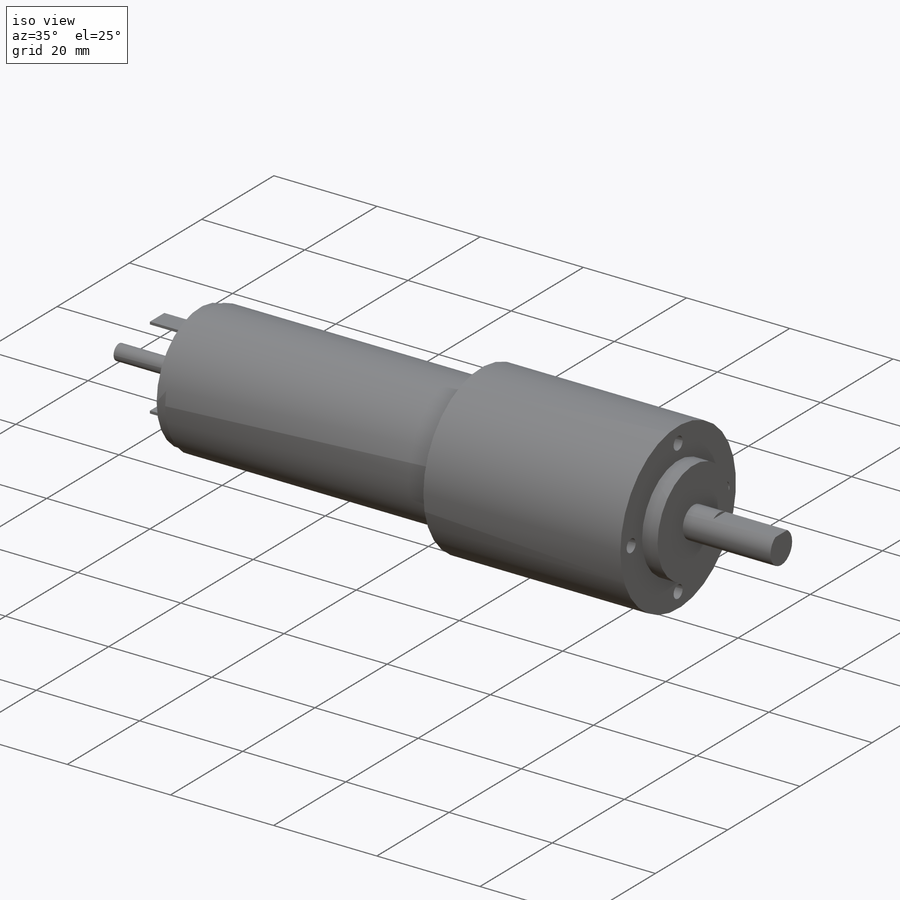
[diagram: iso view]
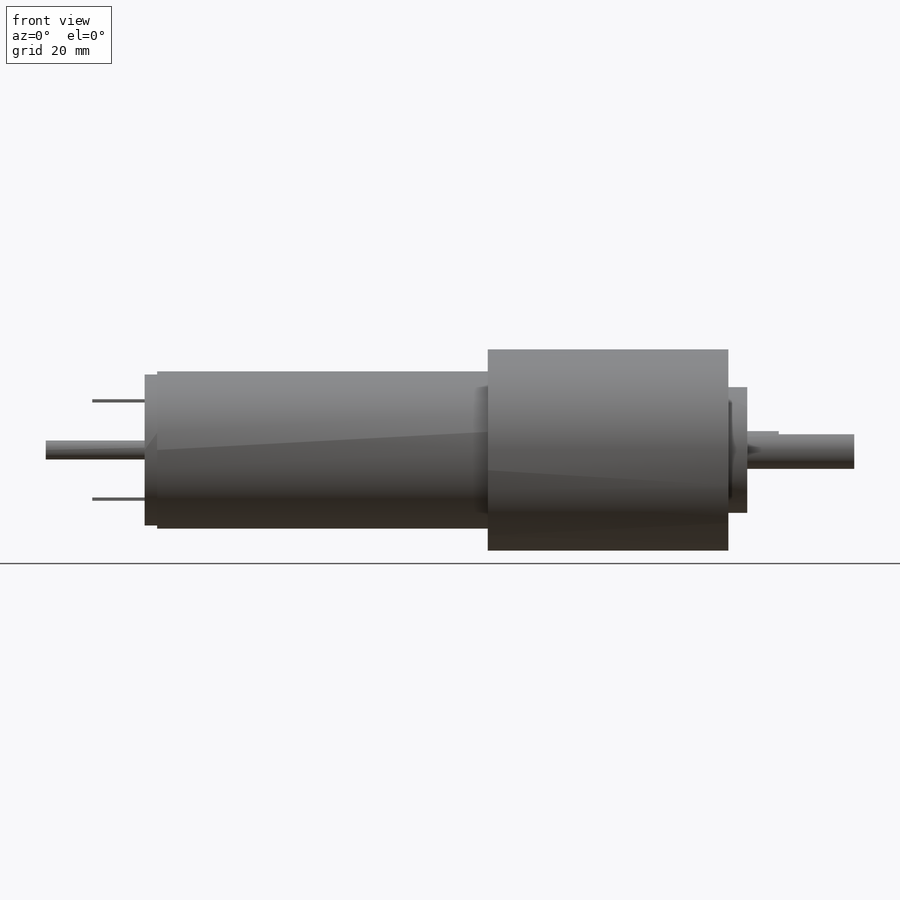
[diagram: front view]
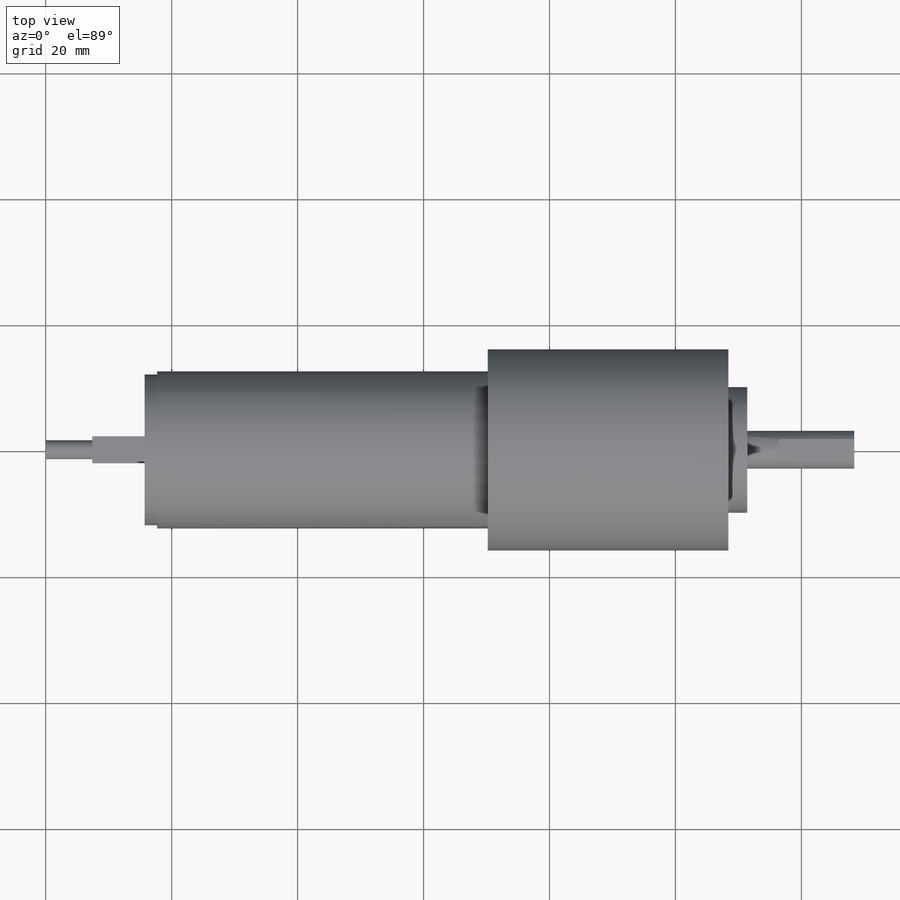
[diagram: top view]
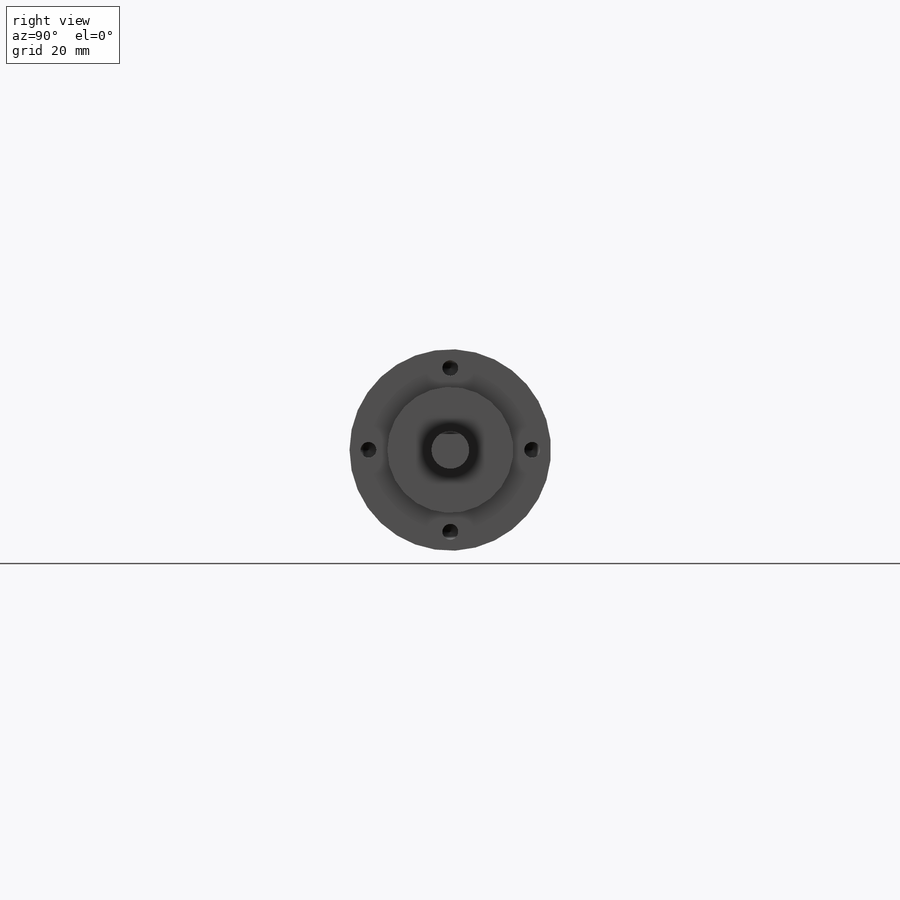
[diagram: right view]
SOLIDWORKS PART (.sldprt)
format: sldprt  version: not decoded by parser v0  size: 575,488 bytes
history: native  units: mm
features: sketch x6, plane x3, pattern_circular x2, material x1, revolve x1, extrude x1, cut_extrude x1, hole x1, thread x1 (+12 scaffold rows collapsed)
feature tree (29):
  scaffold x12  (default folders/planes/origin — collapsed)
  material  "Matériau <non spécifié>"
  plane  "Plan de face"
  plane  "Plan de dessus"
  plane  "Plan de droite"
  sketch  "Esquisse1"  dims[D1=1.5mm D2=12.0mm D3=12.5mm D4=3.0mm D5=10.0mm D6=16.0mm D7=54.5mm D8=15.7mm D9=2.0mm D10=38.2mm D11=20.0mm D12=3.0mm]
  revolve  "Révolution1"  Angle=360deg
  sketch  "Esquisse2"  dims[c1.D1=0.5mm c1.D2=4.0mm c1.D3=9.0mm c1.D4=2.0mm c2.D1=4.0mm c2.D2=0.5mm c2.D3=7.55mm c2.D4=2.0mm c3.D1=9.0mm]
  extrude  "Extrusion1"  Depth=8.3mm
  pattern_circular  "Répétition circulaire1"  Count=2 Angle=180deg
  sketch  "Esquisse3"  dims[D1=0.5mm D2=12.0mm]
  cut_extrude  "Enlèv. mat.-Extru.1"  [1 undecoded]
  sketch  "Esquisse4"  dims[D1=26.0mm]
  hole  "Trou taraudé M3x0.51"  Diameter=2.5mm Depth=6.5mm
  sketch  "Esquisse3D1"
  sketch  "Esquisse5"  dims[hole-wizard template sketch: 47 standard entries collapsed; hole parameters kept: c15.Profondeur du trou pour taraudage=6.5mm c15.D3=~14.816244mm c15.Angle de pointe=118.0deg]
  thread  "Filetage de perçage1"  Diameter=4mm  [1 undecoded]
  pattern_circular  "Répétition circulaire2"  Count=4 Angle=270deg
decode coverage: 11 of 13 modeling features carry decoded parameters
note: ~ marks probable driven/reference dimensions
note: 2 parameter values undecoded
note: suppression state not decoded; provenance and decode notes live in map.json
